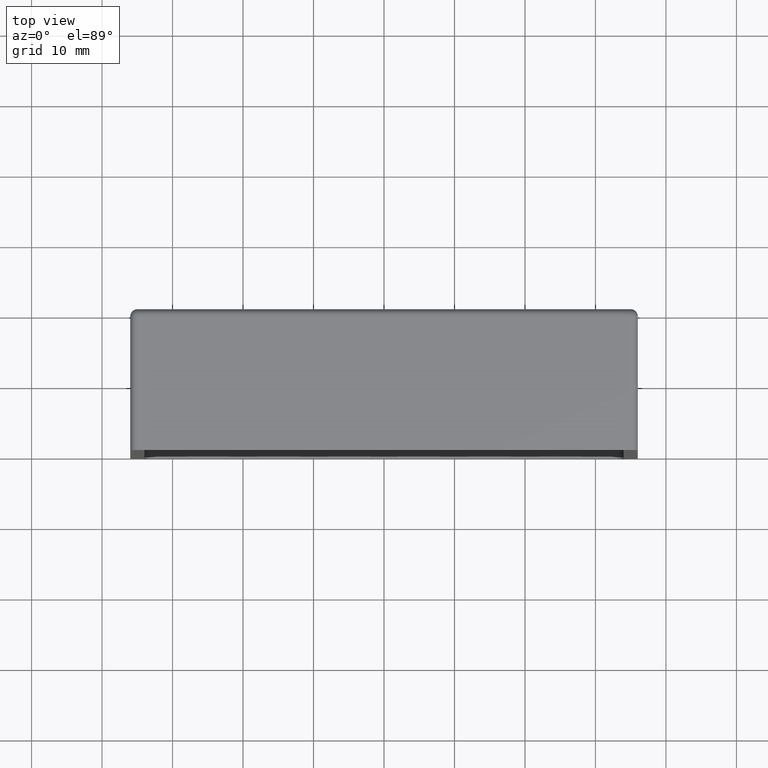
[diagram: clean part render]
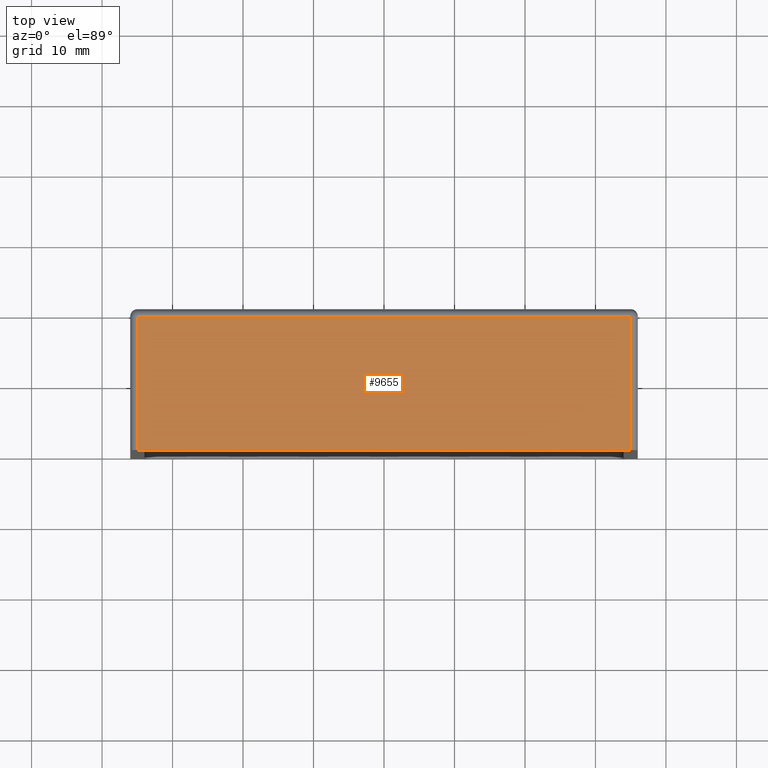
[diagram: same view with one face highlighted and labeled with its STEP entity id]
A machine part, top view. The second image highlights one B-rep face of the part: STEP entity #9655.
In plain terms, the highlighted planar face has unit normal (0, 0, -1).
Its self-contained STEP definition (entity closure, byte-faithful):
#225 = VERTEX_POINT ( 'NONE', #3516 ) ;
#699 = LINE ( 'NONE', #15883, #1906 ) ;
#907 = LINE ( 'NONE', #11095, #9712 ) ;
#1579 = AXIS2_PLACEMENT_3D ( 'NONE', #3118, #5745, #9732 ) ;
#1603 = ORIENTED_EDGE ( 'NONE', *, *, #11585, .T. ) ;
#1906 = VECTOR ( 'NONE', #8520, 1000.000000000000000 ) ;
#2546 = VECTOR ( 'NONE', #9290, 1000.000000000000000 ) ;
#2980 = CARTESIAN_POINT ( 'NONE',  ( -35.00000000000000711, 19.00000000000000000, 35.99999999999999289 ) ) ;
#3118 = CARTESIAN_POINT ( 'NONE',  ( -36.00000000000001421, 20.00000000000000000, 35.99999999999999289 ) ) ;
#3384 = VERTEX_POINT ( 'NONE', #16257 ) ;
#3411 = DIRECTION ( 'NONE',  ( 0.000000000000000000, -1.000000000000000000, 0.000000000000000000 ) ) ;
#3516 = CARTESIAN_POINT ( 'NONE',  ( 34.99999999999999289, 19.00000000000000000, 35.99999999999999289 ) ) ;
#3578 = LINE ( 'NONE', #14135, #15077 ) ;
#4277 = ORIENTED_EDGE ( 'NONE', *, *, #10436, .T. ) ;
#4326 = CARTESIAN_POINT ( 'NONE',  ( -35.00000000000000711, 0.000000000000000000, 35.99999999999999289 ) ) ;
#5745 = DIRECTION ( 'NONE',  ( 0.000000000000000000, 0.000000000000000000, -1.000000000000000000 ) ) ;
#5791 = EDGE_LOOP ( 'NONE', ( #4277, #1603, #8666, #7075 ) ) ;
#5809 = PLANE ( 'NONE',  #1579 ) ;
#7075 = ORIENTED_EDGE ( 'NONE', *, *, #10972, .T. ) ;
#8520 = DIRECTION ( 'NONE',  ( -0.000000000000000000, 1.000000000000000000, -0.000000000000000000 ) ) ;
#8604 = FACE_OUTER_BOUND ( 'NONE', #5791, .T. ) ;
#8666 = ORIENTED_EDGE ( 'NONE', *, *, #11399, .T. ) ;
#9290 = DIRECTION ( 'NONE',  ( -1.000000000000000000, -0.000000000000000000, -0.000000000000000000 ) ) ;
#9655 = ADVANCED_FACE ( 'NONE', ( #8604 ), #5809, .F. ) ;
#9712 = VECTOR ( 'NONE', #3411, 1000.000000000000000 ) ;
#9732 = DIRECTION ( 'NONE',  ( -1.000000000000000000, 0.000000000000000000, -0.000000000000000000 ) ) ;
#10436 = EDGE_CURVE ( 'NONE', #225, #16997, #16318, .T. ) ;
#10972 = EDGE_CURVE ( 'NONE', #3384, #225, #699, .T. ) ;
#11095 = CARTESIAN_POINT ( 'NONE',  ( -35.00000000000000711, 20.00000000000000000, 35.99999999999999289 ) ) ;
#11399 = EDGE_CURVE ( 'NONE', #15693, #3384, #3578, .T. ) ;
#11585 = EDGE_CURVE ( 'NONE', #16997, #15693, #907, .T. ) ;
#14135 = CARTESIAN_POINT ( 'NONE',  ( -36.00000000000001421, 0.000000000000000000, 35.99999999999999289 ) ) ;
#15077 = VECTOR ( 'NONE', #15291, 1000.000000000000000 ) ;
#15291 = DIRECTION ( 'NONE',  ( 1.000000000000000000, 0.000000000000000000, 0.000000000000000000 ) ) ;
#15693 = VERTEX_POINT ( 'NONE', #4326 ) ;
#15845 = CARTESIAN_POINT ( 'NONE',  ( -36.00000000000001421, 19.00000000000000000, 35.99999999999999289 ) ) ;
#15883 = CARTESIAN_POINT ( 'NONE',  ( 34.99999999999999289, 20.00000000000000000, 35.99999999999999289 ) ) ;
#16257 = CARTESIAN_POINT ( 'NONE',  ( 34.99999999999999289, 0.000000000000000000, 35.99999999999999289 ) ) ;
#16318 = LINE ( 'NONE', #15845, #2546 ) ;
#16997 = VERTEX_POINT ( 'NONE', #2980 ) ;